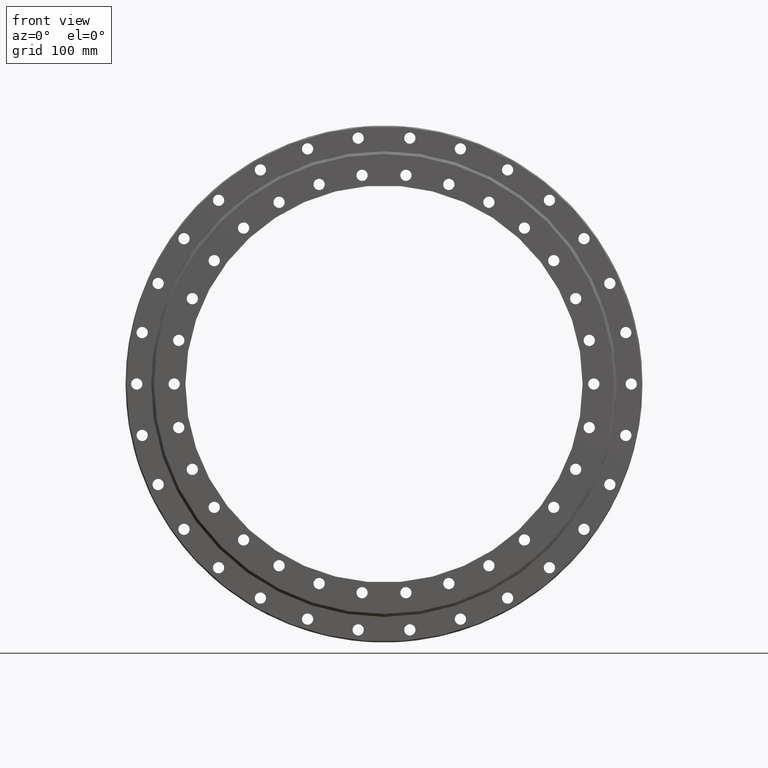
[diagram: clean part render]
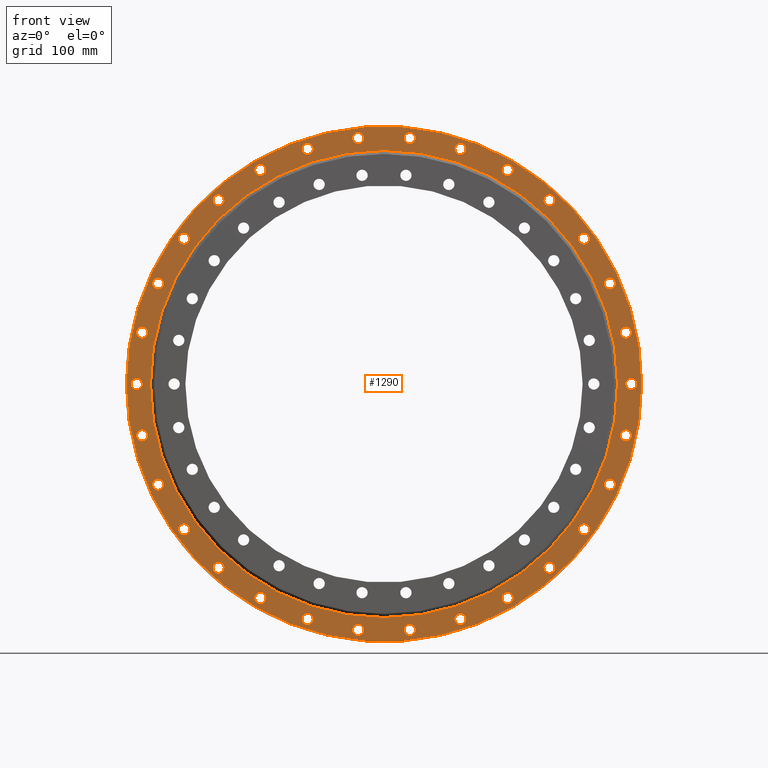
[diagram: same view with one face highlighted and labeled with its STEP entity id]
A machine part, front view. The second image highlights one B-rep face of the part: STEP entity #1290.
In plain terms, the highlighted planar face has unit normal (0, 1, 0).
Its self-contained STEP definition (entity closure, byte-faithful):
#64 = VERTEX_POINT ( 'NONE', #5556 ) ;
#129 = ORIENTED_EDGE ( 'NONE', *, *, #3015, .T. ) ;
#132 = CARTESIAN_POINT ( 'NONE',  ( 91.93255582654391800, -20.00000000000000400, -282.9393135978091300 ) ) ;
#134 = CARTESIAN_POINT ( 'NONE',  ( 37.84721782212366700, -20.00000000000000400, -295.8702638720616300 ) ) ;
#152 = CARTESIAN_POINT ( 'NONE',  ( -85.18255582655025600, -20.00000000000000400, -282.9393135978070900 ) ) ;
#163 = CARTESIAN_POINT ( 'NONE',  ( -290.7500000000000000, -20.00000000000000400, 4.330696432627534300E-012 ) ) ;
#186 = DIRECTION ( 'NONE',  ( 0.8090169943749500000, 0.0000000000000000000, -0.5877852522924695800 ) ) ;
#187 = VERTEX_POINT ( 'NONE', #7224 ) ;
#194 = DIRECTION ( 'NONE',  ( -0.3090169943749435100, 0.0000000000000000000, -0.9510565162951548600 ) ) ;
#222 = CARTESIAN_POINT ( 'NONE',  ( 233.9325558265479700, -20.00000000000000400, 174.8661125570092500 ) ) ;
#240 = CARTESIAN_POINT ( 'NONE',  ( -310.0000000000000000, -20.00000000000000400, 0.0000000000000000000 ) ) ;
#252 = DIRECTION ( 'NONE',  ( 0.0000000000000000000, 1.000000000000000000, 0.0000000000000000000 ) ) ;
#254 = EDGE_LOOP ( 'NONE', ( #6042, #4956 ) ) ;
#279 = CARTESIAN_POINT ( 'NONE',  ( 284.2489112183076300, -20.00000000000000400, 61.85372801828128100 ) ) ;
#286 = CARTESIAN_POINT ( 'NONE',  ( -91.93255582655024200, -20.00000000000000400, -282.9393135978070900 ) ) ;
#287 = CARTESIAN_POINT ( 'NONE',  ( 240.6825558265479700, -20.00000000000000400, 174.8661125570092500 ) ) ;
#298 = CIRCLE ( 'NONE', #1175, 6.749999999999978700 ) ;
#303 = VERTEX_POINT ( 'NONE', #8207 ) ;
#312 = DIRECTION ( 'NONE',  ( 0.0000000000000000000, 1.000000000000000000, 0.0000000000000000000 ) ) ;
#322 = VERTEX_POINT ( 'NONE', #8430 ) ;
#331 = VERTEX_POINT ( 'NONE', #8242 ) ;
#334 = CIRCLE ( 'NONE', #1951, 6.749999999999998200 ) ;
#367 = VERTEX_POINT ( 'NONE', #5077 ) ;
#388 = EDGE_LOOP ( 'NONE', ( #4906, #8275 ) ) ;
#447 = ORIENTED_EDGE ( 'NONE', *, *, #2322, .T. ) ;
#461 = EDGE_CURVE ( 'NONE', #1344, #7977, #5768, .T. ) ;
#483 = CIRCLE ( 'NONE', #6910, 6.750000000000011500 ) ;
#492 = FACE_BOUND ( 'NONE', #2041, .T. ) ;
#503 = DIRECTION ( 'NONE',  ( 0.0000000000000000000, 1.000000000000000000, 0.0000000000000000000 ) ) ;
#508 = CARTESIAN_POINT ( 'NONE',  ( -240.6825558265491900, -20.00000000000000400, -174.8661125570075400 ) ) ;
#517 = CARTESIAN_POINT ( 'NONE',  ( 240.6825558265451800, -20.00000000000000400, -174.8661125570129700 ) ) ;
#519 = CIRCLE ( 'NONE', #5577, 6.750000000000009800 ) ;
#522 = ORIENTED_EDGE ( 'NONE', *, *, #7590, .T. ) ;
#533 = ORIENTED_EDGE ( 'NONE', *, *, #922, .T. ) ;
#547 = DIRECTION ( 'NONE',  ( -0.6691306063588566800, 0.0000000000000000000, -0.7431448254773955800 ) ) ;
#556 = EDGE_CURVE ( 'NONE', #64, #8353, #3014, .T. ) ;
#565 = DIRECTION ( 'NONE',  ( 0.0000000000000000000, 1.000000000000000000, 0.0000000000000000000 ) ) ;
#576 = CARTESIAN_POINT ( 'NONE',  ( -199.0663553917631500, -20.00000000000000400, -221.0855855795222700 ) ) ;
#578 = AXIS2_PLACEMENT_3D ( 'NONE', #6097, #1904, #6811 ) ;
#612 = EDGE_CURVE ( 'NONE', #4110, #818, #519, .T. ) ;
#628 = VERTEX_POINT ( 'NONE', #3680 ) ;
#647 = VERTEX_POINT ( 'NONE', #2472 ) ;
#670 = DIRECTION ( 'NONE',  ( 0.0000000000000000000, 1.000000000000000000, 0.0000000000000000000 ) ) ;
#686 = EDGE_CURVE ( 'NONE', #2606, #4019, #7336, .T. ) ;
#691 = DIRECTION ( 'NONE',  ( -0.6691306063588566800, 0.0000000000000000000, -0.7431448254773955800 ) ) ;
#697 = EDGE_LOOP ( 'NONE', ( #3915, #5127 ) ) ;
#705 = FACE_BOUND ( 'NONE', #3337, .T. ) ;
#713 = AXIS2_PLACEMENT_3D ( 'NONE', #286, #252, #194 ) ;
#728 = AXIS2_PLACEMENT_3D ( 'NONE', #2167, #2157, #2139 ) ;
#742 = EDGE_CURVE ( 'NONE', #3666, #1163, #298, .T. ) ;
#754 = CARTESIAN_POINT ( 'NONE',  ( -199.0663553917631500, -20.00000000000000400, -221.0855855795222700 ) ) ;
#788 = DIRECTION ( 'NONE',  ( 0.0000000000000000000, 1.000000000000000000, 0.0000000000000000000 ) ) ;
#814 = CIRCLE ( 'NONE', #2957, 6.749999999999978700 ) ;
#818 = VERTEX_POINT ( 'NONE', #279 ) ;
#841 = VERTEX_POINT ( 'NONE', #3990 ) ;
#850 = AXIS2_PLACEMENT_3D ( 'NONE', #2844, #2835, #2800 ) ;
#851 = DIRECTION ( 'NONE',  ( 0.9135454576425983100, 0.0000000000000000000, 0.4067366430758060900 ) ) ;
#859 = VERTEX_POINT ( 'NONE', #2978 ) ;
#874 = AXIS2_PLACEMENT_3D ( 'NONE', #2483, #7428, #3171 ) ;
#880 = CARTESIAN_POINT ( 'NONE',  ( -155.4999999999992600, -20.00000000000000400, 257.6425576258708900 ) ) ;
#884 = DIRECTION ( 'NONE',  ( 0.0000000000000000000, 1.000000000000000000, 0.0000000000000000000 ) ) ;
#906 = CIRCLE ( 'NONE', #7696, 6.749999999999996400 ) ;
#919 = CARTESIAN_POINT ( 'NONE',  ( 271.7797736486746200, -20.00000000000000400, 121.0041513150486500 ) ) ;
#922 = EDGE_CURVE ( 'NONE', #5788, #4016, #2568, .T. ) ;
#923 = DIRECTION ( 'NONE',  ( 0.0000000000000000000, 1.000000000000000000, 0.0000000000000000000 ) ) ;
#928 = FACE_BOUND ( 'NONE', #5675, .T. ) ;
#967 = CARTESIAN_POINT ( 'NONE',  ( 91.93255582654391800, -20.00000000000000400, -282.9393135978091300 ) ) ;
#968 = EDGE_LOOP ( 'NONE', ( #1836, #6768 ) ) ;
#975 = DIRECTION ( 'NONE',  ( 0.0000000000000000000, 1.000000000000000000, 0.0000000000000000000 ) ) ;
#985 = EDGE_CURVE ( 'NONE', #7448, #6215, #7791, .T. ) ;
#987 = DIRECTION ( 'NONE',  ( 0.8090169943749432300, 0.0000000000000000000, 0.5877852522924788000 ) ) ;
#1006 = DIRECTION ( 'NONE',  ( 0.1045284632676434600, 0.0000000000000000000, 0.9945218953682744000 ) ) ;
#1076 = ORIENTED_EDGE ( 'NONE', *, *, #7416, .T. ) ;
#1089 = ORIENTED_EDGE ( 'NONE', *, *, #1482, .T. ) ;
#1119 = CIRCLE ( 'NONE', #6989, 6.749999999999974200 ) ;
#1124 = EDGE_LOOP ( 'NONE', ( #2246, #8164 ) ) ;
#1138 = FACE_BOUND ( 'NONE', #3209, .T. ) ;
#1163 = VERTEX_POINT ( 'NONE', #1238 ) ;
#1175 = AXIS2_PLACEMENT_3D ( 'NONE', #7158, #7202, #7221 ) ;
#1185 = ORIENTED_EDGE ( 'NONE', *, *, #985, .T. ) ;
#1214 = DIRECTION ( 'NONE',  ( 0.8090169943749500000, 0.0000000000000000000, -0.5877852522924695800 ) ) ;
#1224 = EDGE_CURVE ( 'NONE', #7867, #8864, #2237, .T. ) ;
#1238 = CARTESIAN_POINT ( 'NONE',  ( 290.7500000000000000, -20.00000000000000400, -2.252438399426445500E-012 ) ) ;
#1242 = AXIS2_PLACEMENT_3D ( 'NONE', #2691, #2661, #2634 ) ;
#1257 = DIRECTION ( 'NONE',  ( 0.0000000000000000000, 1.000000000000000000, 0.0000000000000000000 ) ) ;
#1261 = AXIS2_PLACEMENT_3D ( 'NONE', #4673, #4642, #4603 ) ;
#1274 = AXIS2_PLACEMENT_3D ( 'NONE', #5103, #923, #5818 ) ;
#1276 = VERTEX_POINT ( 'NONE', #3395 ) ;
#1290 = ADVANCED_FACE ( 'NONE', ( #9109, #1800, #7429, #7201, #5298, #3426, #1584, #8889, #6961, #5080, #3200, #1359, #8669, #6731, #4862, #2985, #1138, #8456, #6515, #4633, #2769, #928, #8226, #6301, #4416, #2563, #705, #7998, #6067, #4206, #2343, #492 ), #3852, .F. ) ;
#1297 = CIRCLE ( 'NONE', #7478, 6.749999999999992900 ) ;
#1344 = VERTEX_POINT ( 'NONE', #4786 ) ;
#1353 = CIRCLE ( 'NONE', #5164, 6.750000000000019500 ) ;
#1359 = FACE_BOUND ( 'NONE', #2751, .T. ) ;
#1366 = CARTESIAN_POINT ( 'NONE',  ( -24.34721782213030000, -20.00000000000000400, -295.8702638720610000 ) ) ;
#1385 = DIRECTION ( 'NONE',  ( 0.0000000000000000000, 1.000000000000000000, 0.0000000000000000000 ) ) ;
#1472 = CIRCLE ( 'NONE', #3292, 6.750000000000011500 ) ;
#1482 = EDGE_CURVE ( 'NONE', #7472, #7752, #4751, .T. ) ;
#1489 = CARTESIAN_POINT ( 'NONE',  ( -205.8163553917631500, -20.00000000000000400, -221.0855855795222700 ) ) ;
#1520 = CARTESIAN_POINT ( 'NONE',  ( -155.5000000000031500, -20.00000000000000400, -257.6425576258686800 ) ) ;
#1531 = CARTESIAN_POINT ( 'NONE',  ( -304.2499999999999400, -20.00000000000000400, 4.329869796038109700E-012 ) ) ;
#1532 = EDGE_CURVE ( 'NONE', #8201, #647, #6405, .T. ) ;
#1581 = EDGE_CURVE ( 'NONE', #3575, #7122, #7421, .T. ) ;
#1584 = FACE_BOUND ( 'NONE', #3153, .T. ) ;
#1656 = DIRECTION ( 'NONE',  ( -0.8090169943749553300, 0.0000000000000000000, 0.5877852522924623700 ) ) ;
#1660 = ORIENTED_EDGE ( 'NONE', *, *, #742, .T. ) ;
#1661 = EDGE_CURVE ( 'NONE', #4016, #5788, #1353, .T. ) ;
#1666 = VERTEX_POINT ( 'NONE', #7584 ) ;
#1680 = CARTESIAN_POINT ( 'NONE',  ( -247.4325558265464100, -20.00000000000000400, 174.8661125570113200 ) ) ;
#1688 = EDGE_CURVE ( 'NONE', #8354, #367, #1792, .T. ) ;
#1695 = DIRECTION ( 'NONE',  ( 0.0000000000000000000, 1.000000000000000000, 0.0000000000000000000 ) ) ;
#1721 = ORIENTED_EDGE ( 'NONE', *, *, #3767, .T. ) ;
#1724 = VERTEX_POINT ( 'NONE', #3001 ) ;
#1733 = ORIENTED_EDGE ( 'NONE', *, *, #6498, .T. ) ;
#1755 = CARTESIAN_POINT ( 'NONE',  ( -240.6825558265464100, -20.00000000000000400, 174.8661125570113200 ) ) ;
#1760 = EDGE_LOOP ( 'NONE', ( #6556, #8123 ) ) ;
#1779 = CIRCLE ( 'NONE', #6725, 6.750000000000004400 ) ;
#1781 = CARTESIAN_POINT ( 'NONE',  ( -37.84721782212560700, -20.00000000000000400, 295.8702638720614600 ) ) ;
#1782 = EDGE_LOOP ( 'NONE', ( #6962, #2569 ) ) ;
#1792 = CIRCLE ( 'NONE', #2810, 6.750000000000016000 ) ;
#1798 = EDGE_CURVE ( 'NONE', #1163, #3666, #6294, .T. ) ;
#1800 = FACE_BOUND ( 'NONE', #4921, .T. ) ;
#1806 = ORIENTED_EDGE ( 'NONE', *, *, #1532, .T. ) ;
#1809 = AXIS2_PLACEMENT_3D ( 'NONE', #6003, #1813, #6710 ) ;
#1813 = DIRECTION ( 'NONE',  ( 0.0000000000000000000, 1.000000000000000000, 0.0000000000000000000 ) ) ;
#1820 = DIRECTION ( 'NONE',  ( 0.0000000000000000000, 1.000000000000000000, 0.0000000000000000000 ) ) ;
#1826 = CARTESIAN_POINT ( 'NONE',  ( -271.7797736486754700, -20.00000000000000400, -121.0041513150468500 ) ) ;
#1836 = ORIENTED_EDGE ( 'NONE', *, *, #1863, .T. ) ;
#1849 = CARTESIAN_POINT ( 'NONE',  ( 290.9989112183066600, -20.00000000000000400, -61.85372801828582100 ) ) ;
#1855 = DIRECTION ( 'NONE',  ( 0.3090169943749532800, 0.0000000000000000000, -0.9510565162951516400 ) ) ;
#1863 = EDGE_CURVE ( 'NONE', #322, #303, #2119, .T. ) ;
#1878 = ORIENTED_EDGE ( 'NONE', *, *, #8980, .T. ) ;
#1883 = AXIS2_PLACEMENT_3D ( 'NONE', #4104, #4411, #4437 ) ;
#1890 = EDGE_LOOP ( 'NONE', ( #3685, #5120 ) ) ;
#1892 = AXIS2_PLACEMENT_3D ( 'NONE', #5177, #5491, #5273 ) ;
#1904 = DIRECTION ( 'NONE',  ( 0.0000000000000000000, 1.000000000000000000, 0.0000000000000000000 ) ) ;
#1909 = EDGE_CURVE ( 'NONE', #8565, #6845, #7524, .T. ) ;
#1910 = CIRCLE ( 'NONE', #5143, 6.749999999999982200 ) ;
#1932 = ORIENTED_EDGE ( 'NONE', *, *, #3774, .T. ) ;
#1948 = EDGE_CURVE ( 'NONE', #5622, #6172, #7065, .T. ) ;
#1951 = AXIS2_PLACEMENT_3D ( 'NONE', #508, #670, #6787 ) ;
#1958 = ORIENTED_EDGE ( 'NONE', *, *, #8855, .T. ) ;
#1961 = DIRECTION ( 'NONE',  ( 0.0000000000000000000, 1.000000000000000000, 0.0000000000000000000 ) ) ;
#1976 = CARTESIAN_POINT ( 'NONE',  ( -91.93255582654569500, -20.00000000000000400, 282.9393135978085600 ) ) ;
#1993 = VERTEX_POINT ( 'NONE', #6013 ) ;
#2009 = CIRCLE ( 'NONE', #1261, 6.749999999999969800 ) ;
#2023 = DIRECTION ( 'NONE',  ( 0.0000000000000000000, 1.000000000000000000, 0.0000000000000000000 ) ) ;
#2041 = EDGE_LOOP ( 'NONE', ( #7593, #5463 ) ) ;
#2119 = CIRCLE ( 'NONE', #7563, 6.749999999999992000 ) ;
#2121 = VERTEX_POINT ( 'NONE', #5216 ) ;
#2139 = DIRECTION ( 'NONE',  ( -1.000000000000000000, 0.0000000000000000000, 0.0000000000000000000 ) ) ;
#2149 = CARTESIAN_POINT ( 'NONE',  ( 199.0663553917581800, -20.00000000000000400, -221.0855855795266800 ) ) ;
#2150 = ORIENTED_EDGE ( 'NONE', *, *, #8841, .T. ) ;
#2157 = DIRECTION ( 'NONE',  ( 0.0000000000000000000, 1.000000000000000000, 0.0000000000000000000 ) ) ;
#2167 = CARTESIAN_POINT ( 'NONE',  ( 1.753618503876595600E-015, -20.00000000000000400, 0.0000000000000000000 ) ) ;
#2176 = DIRECTION ( 'NONE',  ( 0.0000000000000000000, 1.000000000000000000, 0.0000000000000000000 ) ) ;
#2205 = EDGE_CURVE ( 'NONE', #5778, #5111, #7178, .T. ) ;
#2237 = CIRCLE ( 'NONE', #3158, 6.749999999999974200 ) ;
#2246 = ORIENTED_EDGE ( 'NONE', *, *, #6311, .T. ) ;
#2252 = EDGE_LOOP ( 'NONE', ( #4327, #5759 ) ) ;
#2276 = DIRECTION ( 'NONE',  ( 0.0000000000000000000, 1.000000000000000000, 0.0000000000000000000 ) ) ;
#2286 = EDGE_CURVE ( 'NONE', #4466, #3795, #906, .T. ) ;
#2289 = CIRCLE ( 'NONE', #2706, 6.750000000000009800 ) ;
#2318 = EDGE_LOOP ( 'NONE', ( #1806, #6523 ) ) ;
#2322 = EDGE_CURVE ( 'NONE', #2577, #6747, #2324, .T. ) ;
#2324 = CIRCLE ( 'NONE', #9130, 6.750000000000012400 ) ;
#2328 = CIRCLE ( 'NONE', #5540, 6.749999999999993800 ) ;
#2343 = FACE_BOUND ( 'NONE', #2252, .T. ) ;
#2371 = CARTESIAN_POINT ( 'NONE',  ( 31.09721782212829000, -20.00000000000000400, 295.8702638720611700 ) ) ;
#2379 = VERTEX_POINT ( 'NONE', #5154 ) ;
#2385 = CIRCLE ( 'NONE', #6584, 6.749999999999998200 ) ;
#2399 = ORIENTED_EDGE ( 'NONE', *, *, #556, .T. ) ;
#2413 = AXIS2_PLACEMENT_3D ( 'NONE', #3277, #5416, #5596 ) ;
#2472 = CARTESIAN_POINT ( 'NONE',  ( 310.0000000000000000, -20.00000000000000400, 3.802528311352532000E-014 ) ) ;
#2483 = CARTESIAN_POINT ( 'NONE',  ( -31.09721782213029300, -20.00000000000000400, -295.8702638720610000 ) ) ;
#2488 = CARTESIAN_POINT ( 'NONE',  ( -37.84721782213029000, -20.00000000000000400, -295.8702638720610000 ) ) ;
#2494 = AXIS2_PLACEMENT_3D ( 'NONE', #3214, #8200, #3924 ) ;
#2508 = EDGE_CURVE ( 'NONE', #7026, #2675, #7193, .T. ) ;
#2510 = CIRCLE ( 'NONE', #8801, 6.749999999999984000 ) ;
#2514 = ORIENTED_EDGE ( 'NONE', *, *, #5528, .T. ) ;
#2528 = DIRECTION ( 'NONE',  ( -0.9135454576426005300, 0.0000000000000000000, -0.4067366430758008700 ) ) ;
#2533 = AXIS2_PLACEMENT_3D ( 'NONE', #6931, #6967, #6999 ) ;
#2543 = DIRECTION ( 'NONE',  ( 0.9781476007338070200, 0.0000000000000000000, -0.2079116908177530400 ) ) ;
#2545 = VERTEX_POINT ( 'NONE', #1531 ) ;
#2563 = FACE_BOUND ( 'NONE', #4119, .T. ) ;
#2568 = CIRCLE ( 'NONE', #7819, 6.750000000000019500 ) ;
#2569 = ORIENTED_EDGE ( 'NONE', *, *, #4399, .T. ) ;
#2576 = CARTESIAN_POINT ( 'NONE',  ( -91.93255582654569500, -20.00000000000000400, 282.9393135978085600 ) ) ;
#2577 = VERTEX_POINT ( 'NONE', #880 ) ;
#2582 = ORIENTED_EDGE ( 'NONE', *, *, #6244, .T. ) ;
#2597 = CARTESIAN_POINT ( 'NONE',  ( -141.9999999999992300, -20.00000000000000400, 257.6425576258708900 ) ) ;
#2599 = CARTESIAN_POINT ( 'NONE',  ( -85.18255582654569500, -20.00000000000000400, 282.9393135978085600 ) ) ;
#2602 = VERTEX_POINT ( 'NONE', #222 ) ;
#2604 = CARTESIAN_POINT ( 'NONE',  ( -31.09721782212561100, -20.00000000000000400, 295.8702638720614600 ) ) ;
#2606 = VERTEX_POINT ( 'NONE', #152 ) ;
#2612 = DIRECTION ( 'NONE',  ( 0.0000000000000000000, 1.000000000000000000, 0.0000000000000000000 ) ) ;
#2633 = DIRECTION ( 'NONE',  ( -0.1045284632676636600, 0.0000000000000000000, 0.9945218953682721800 ) ) ;
#2634 = DIRECTION ( 'NONE',  ( -0.9135454576426065300, 0.0000000000000000000, 0.4067366430757875000 ) ) ;
#2642 = AXIS2_PLACEMENT_3D ( 'NONE', #967, #1820, #1855 ) ;
#2661 = DIRECTION ( 'NONE',  ( 0.0000000000000000000, 1.000000000000000000, 0.0000000000000000000 ) ) ;
#2671 = DIRECTION ( 'NONE',  ( -0.3090169943749570500, 0.0000000000000000000, 0.9510565162951504200 ) ) ;
#2675 = VERTEX_POINT ( 'NONE', #4152 ) ;
#2691 = CARTESIAN_POINT ( 'NONE',  ( -271.7797736486735400, -20.00000000000000400, 121.0041513150511500 ) ) ;
#2706 = AXIS2_PLACEMENT_3D ( 'NONE', #4494, #4470, #4440 ) ;
#2720 = CIRCLE ( 'NONE', #7350, 6.749999999999989300 ) ;
#2751 = EDGE_LOOP ( 'NONE', ( #2514, #3155 ) ) ;
#2769 = FACE_BOUND ( 'NONE', #8820, .T. ) ;
#2785 = CARTESIAN_POINT ( 'NONE',  ( -24.34721782212561400, -20.00000000000000400, 295.8702638720614600 ) ) ;
#2797 = EDGE_CURVE ( 'NONE', #187, #859, #334, .T. ) ;
#2800 = DIRECTION ( 'NONE',  ( 0.8090169943749432300, 0.0000000000000000000, 0.5877852522924788000 ) ) ;
#2809 = CIRCLE ( 'NONE', #1892, 6.749999999999977800 ) ;
#2810 = AXIS2_PLACEMENT_3D ( 'NONE', #8912, #312, #1006 ) ;
#2821 = CIRCLE ( 'NONE', #9096, 6.750000000000006200 ) ;
#2835 = DIRECTION ( 'NONE',  ( 0.0000000000000000000, 1.000000000000000000, 0.0000000000000000000 ) ) ;
#2839 = DIRECTION ( 'NONE',  ( 0.6691306063588610100, 0.0000000000000000000, -0.7431448254773915800 ) ) ;
#2844 = CARTESIAN_POINT ( 'NONE',  ( 240.6825558265479700, -20.00000000000000400, 174.8661125570092500 ) ) ;
#2856 = EDGE_LOOP ( 'NONE', ( #4181, #2964 ) ) ;
#2878 = CIRCLE ( 'NONE', #8861, 6.749999999999984000 ) ;
#2914 = ORIENTED_EDGE ( 'NONE', *, *, #7876, .T. ) ;
#2927 = ORIENTED_EDGE ( 'NONE', *, *, #5015, .T. ) ;
#2932 = AXIS2_PLACEMENT_3D ( 'NONE', #754, #788, #691 ) ;
#2957 = AXIS2_PLACEMENT_3D ( 'NONE', #4172, #9156, #4879 ) ;
#2964 = ORIENTED_EDGE ( 'NONE', *, *, #6048, .T. ) ;
#2978 = CARTESIAN_POINT ( 'NONE',  ( -233.9325558265491900, -20.00000000000000400, -174.8661125570075400 ) ) ;
#2985 = FACE_BOUND ( 'NONE', #8895, .T. ) ;
#3001 = CARTESIAN_POINT ( 'NONE',  ( 24.34721782212368500, -20.00000000000000400, -295.8702638720616300 ) ) ;
#3014 = CIRCLE ( 'NONE', #3208, 6.749999999999982200 ) ;
#3015 = EDGE_CURVE ( 'NONE', #818, #4110, #2289, .T. ) ;
#3034 = VERTEX_POINT ( 'NONE', #4553 ) ;
#3060 = DIRECTION ( 'NONE',  ( 0.1045284632676434600, 0.0000000000000000000, 0.9945218953682744000 ) ) ;
#3073 = ORIENTED_EDGE ( 'NONE', *, *, #1688, .T. ) ;
#3134 = EDGE_LOOP ( 'NONE', ( #1878, #8754 ) ) ;
#3153 = EDGE_LOOP ( 'NONE', ( #2582, #2150 ) ) ;
#3155 = ORIENTED_EDGE ( 'NONE', *, *, #7408, .T. ) ;
#3158 = AXIS2_PLACEMENT_3D ( 'NONE', #2604, #2612, #2633 ) ;
#3159 = VERTEX_POINT ( 'NONE', #2488 ) ;
#3171 = DIRECTION ( 'NONE',  ( -0.1045284632676495700, 0.0000000000000000000, -0.9945218953682737300 ) ) ;
#3179 = DIRECTION ( 'NONE',  ( 0.0000000000000000000, 1.000000000000000000, 0.0000000000000000000 ) ) ;
#3200 = FACE_BOUND ( 'NONE', #1124, .T. ) ;
#3208 = AXIS2_PLACEMENT_3D ( 'NONE', #6527, #6764, #5313 ) ;
#3209 = EDGE_LOOP ( 'NONE', ( #1185, #7443 ) ) ;
#3214 = CARTESIAN_POINT ( 'NONE',  ( 0.0000000000000000000, -20.00000000000000400, 0.0000000000000000000 ) ) ;
#3218 = EDGE_LOOP ( 'NONE', ( #2927, #4443 ) ) ;
#3225 = ORIENTED_EDGE ( 'NONE', *, *, #686, .T. ) ;
#3246 = ORIENTED_EDGE ( 'NONE', *, *, #612, .T. ) ;
#3254 = ORIENTED_EDGE ( 'NONE', *, *, #5844, .T. ) ;
#3260 = DIRECTION ( 'NONE',  ( -0.3090169943749570500, 0.0000000000000000000, 0.9510565162951504200 ) ) ;
#3265 = CARTESIAN_POINT ( 'NONE',  ( 247.4325558265451800, -20.00000000000000400, -174.8661125570129700 ) ) ;
#3271 = ORIENTED_EDGE ( 'NONE', *, *, #1798, .T. ) ;
#3277 = CARTESIAN_POINT ( 'NONE',  ( 271.7797736486746200, -20.00000000000000400, 121.0041513150486500 ) ) ;
#3292 = AXIS2_PLACEMENT_3D ( 'NONE', #8081, #8026, #8016 ) ;
#3337 = EDGE_LOOP ( 'NONE', ( #1958, #3366 ) ) ;
#3358 = AXIS2_PLACEMENT_3D ( 'NONE', #4162, #4125, #4103 ) ;
#3366 = ORIENTED_EDGE ( 'NONE', *, *, #4665, .T. ) ;
#3387 = EDGE_CURVE ( 'NONE', #859, #187, #9054, .T. ) ;
#3394 = CARTESIAN_POINT ( 'NONE',  ( 98.68255582654825300, -20.00000000000000400, 282.9393135978077100 ) ) ;
#3395 = CARTESIAN_POINT ( 'NONE',  ( 247.4325558265479700, -20.00000000000000400, 174.8661125570092500 ) ) ;
#3414 = DIRECTION ( 'NONE',  ( 0.0000000000000000000, 1.000000000000000000, 0.0000000000000000000 ) ) ;
#3426 = FACE_BOUND ( 'NONE', #5024, .T. ) ;
#3505 = DIRECTION ( 'NONE',  ( 0.0000000000000000000, 1.000000000000000000, 0.0000000000000000000 ) ) ;
#3508 = VERTEX_POINT ( 'NONE', #2599 ) ;
#3515 = CARTESIAN_POINT ( 'NONE',  ( 85.18255582654826700, -20.00000000000000400, 282.9393135978077100 ) ) ;
#3563 = CARTESIAN_POINT ( 'NONE',  ( -290.9989112183070600, -20.00000000000000400, 61.85372801828391000 ) ) ;
#3575 = VERTEX_POINT ( 'NONE', #4891 ) ;
#3666 = VERTEX_POINT ( 'NONE', #6193 ) ;
#3672 = DIRECTION ( 'NONE',  ( 0.0000000000000000000, 1.000000000000000000, 0.0000000000000000000 ) ) ;
#3678 = DIRECTION ( 'NONE',  ( -0.9781476007338056900, 0.0000000000000000000, -0.2079116908177589500 ) ) ;
#3680 = CARTESIAN_POINT ( 'NONE',  ( 141.9999999999974700, -20.00000000000000400, -257.6425576258720300 ) ) ;
#3685 = ORIENTED_EDGE ( 'NONE', *, *, #7014, .T. ) ;
#3692 = CARTESIAN_POINT ( 'NONE',  ( -290.9989112183080200, -20.00000000000000400, -61.85372801827929800 ) ) ;
#3695 = EDGE_CURVE ( 'NONE', #2121, #2379, #2809, .T. ) ;
#3733 = CIRCLE ( 'NONE', #8385, 6.749999999999975100 ) ;
#3767 = EDGE_CURVE ( 'NONE', #3034, #4029, #2385, .T. ) ;
#3774 = EDGE_CURVE ( 'NONE', #7714, #331, #4453, .T. ) ;
#3776 = AXIS2_PLACEMENT_3D ( 'NONE', #7787, #3505, #8507 ) ;
#3782 = CARTESIAN_POINT ( 'NONE',  ( -297.5000000000000000, -20.00000000000000400, 4.329869796038109700E-012 ) ) ;
#3788 = CIRCLE ( 'NONE', #6740, 6.750000000000009800 ) ;
#3795 = VERTEX_POINT ( 'NONE', #3394 ) ;
#3809 = DIRECTION ( 'NONE',  ( 0.9781476007338040200, 0.0000000000000000000, 0.2079116908177668100 ) ) ;
#3821 = CARTESIAN_POINT ( 'NONE',  ( -275.7499999999999400, -20.00000000000000400, 0.0000000000000000000 ) ) ;
#3840 = CARTESIAN_POINT ( 'NONE',  ( 290.9989112183076300, -20.00000000000000400, 61.85372801828128100 ) ) ;
#3847 = CIRCLE ( 'NONE', #2494, 310.0000000000000000 ) ;
#3852 = PLANE ( 'NONE',  #7932 ) ;
#3880 = EDGE_LOOP ( 'NONE', ( #522, #1932 ) ) ;
#3881 = ORIENTED_EDGE ( 'NONE', *, *, #4533, .T. ) ;
#3896 = DIRECTION ( 'NONE',  ( 0.0000000000000000000, 1.000000000000000000, 0.0000000000000000000 ) ) ;
#3915 = ORIENTED_EDGE ( 'NONE', *, *, #2797, .T. ) ;
#3921 = DIRECTION ( 'NONE',  ( 0.0000000000000000000, 1.000000000000000000, 0.0000000000000000000 ) ) ;
#3924 = DIRECTION ( 'NONE',  ( -1.000000000000000000, 0.0000000000000000000, 0.0000000000000000000 ) ) ;
#3943 = DIRECTION ( 'NONE',  ( -1.000000000000000000, 0.0000000000000000000, 0.0000000000000000000 ) ) ;
#3974 = VERTEX_POINT ( 'NONE', #8959 ) ;
#3990 = CARTESIAN_POINT ( 'NONE',  ( 155.4999999999974700, -20.00000000000000400, -257.6425576258720300 ) ) ;
#4001 = EDGE_CURVE ( 'NONE', #7055, #7300, #4790, .T. ) ;
#4016 = VERTEX_POINT ( 'NONE', #8971 ) ;
#4019 = VERTEX_POINT ( 'NONE', #8516 ) ;
#4029 = VERTEX_POINT ( 'NONE', #8345 ) ;
#4052 = CARTESIAN_POINT ( 'NONE',  ( -91.93255582655024200, -20.00000000000000400, -282.9393135978070900 ) ) ;
#4055 = CARTESIAN_POINT ( 'NONE',  ( 192.3163553917616500, -20.00000000000000400, 221.0855855795236100 ) ) ;
#4078 = CARTESIAN_POINT ( 'NONE',  ( 98.68255582654390400, -20.00000000000000400, -282.9393135978091300 ) ) ;
#4089 = CARTESIAN_POINT ( 'NONE',  ( 148.7499999999974700, -20.00000000000000400, -257.6425576258720300 ) ) ;
#4103 = DIRECTION ( 'NONE',  ( 0.5000000000000036600, 0.0000000000000000000, -0.8660254037844364900 ) ) ;
#4104 = CARTESIAN_POINT ( 'NONE',  ( 199.0663553917616500, -20.00000000000000400, 221.0855855795236100 ) ) ;
#4110 = VERTEX_POINT ( 'NONE', #7196 ) ;
#4119 = EDGE_LOOP ( 'NONE', ( #5234, #2399 ) ) ;
#4125 = DIRECTION ( 'NONE',  ( 0.0000000000000000000, 1.000000000000000000, 0.0000000000000000000 ) ) ;
#4152 = CARTESIAN_POINT ( 'NONE',  ( 281.0000000000000000, -20.00000000000000400, 3.441257505604062700E-014 ) ) ;
#4162 = CARTESIAN_POINT ( 'NONE',  ( 148.7499999999974700, -20.00000000000000400, -257.6425576258720300 ) ) ;
#4172 = CARTESIAN_POINT ( 'NONE',  ( -297.5000000000000000, -20.00000000000000400, 4.329869796038109700E-012 ) ) ;
#4179 = ORIENTED_EDGE ( 'NONE', *, *, #8243, .T. ) ;
#4181 = ORIENTED_EDGE ( 'NONE', *, *, #4001, .T. ) ;
#4187 = AXIS2_PLACEMENT_3D ( 'NONE', #8663, #8645, #8623 ) ;
#4206 = FACE_BOUND ( 'NONE', #7906, .T. ) ;
#4312 = EDGE_CURVE ( 'NONE', #2379, #2121, #6099, .T. ) ;
#4318 = AXIS2_PLACEMENT_3D ( 'NONE', #6232, #2023, #6933 ) ;
#4327 = ORIENTED_EDGE ( 'NONE', *, *, #8739, .T. ) ;
#4362 = ORIENTED_EDGE ( 'NONE', *, *, #7608, .T. ) ;
#4364 = DIRECTION ( 'NONE',  ( 0.0000000000000000000, 1.000000000000000000, 0.0000000000000000000 ) ) ;
#4393 = CARTESIAN_POINT ( 'NONE',  ( -281.0000000000000000, -20.00000000000000400, 0.0000000000000000000 ) ) ;
#4399 = EDGE_CURVE ( 'NONE', #841, #628, #9099, .T. ) ;
#4411 = DIRECTION ( 'NONE',  ( 0.0000000000000000000, 1.000000000000000000, 0.0000000000000000000 ) ) ;
#4416 = FACE_BOUND ( 'NONE', #5319, .T. ) ;
#4419 = AXIS2_PLACEMENT_3D ( 'NONE', #576, #565, #547 ) ;
#4437 = DIRECTION ( 'NONE',  ( 0.6691306063588523500, 0.0000000000000000000, 0.7431448254773995700 ) ) ;
#4440 = DIRECTION ( 'NONE',  ( 0.9781476007338040200, 0.0000000000000000000, 0.2079116908177668100 ) ) ;
#4443 = ORIENTED_EDGE ( 'NONE', *, *, #1909, .T. ) ;
#4453 = CIRCLE ( 'NONE', #6122, 6.749999999999982200 ) ;
#4466 = VERTEX_POINT ( 'NONE', #3515 ) ;
#4470 = DIRECTION ( 'NONE',  ( 0.0000000000000000000, 1.000000000000000000, 0.0000000000000000000 ) ) ;
#4490 = DIRECTION ( 'NONE',  ( -1.000000000000000000, 0.0000000000000000000, 0.0000000000000000000 ) ) ;
#4494 = CARTESIAN_POINT ( 'NONE',  ( 290.9989112183076300, -20.00000000000000400, 61.85372801828128100 ) ) ;
#4496 = VERTEX_POINT ( 'NONE', #3265 ) ;
#4501 = CIRCLE ( 'NONE', #8154, 6.749999999999978700 ) ;
#4533 = EDGE_CURVE ( 'NONE', #2602, #1276, #4616, .T. ) ;
#4553 = CARTESIAN_POINT ( 'NONE',  ( -297.7489112183079700, -20.00000000000000400, -61.85372801827929800 ) ) ;
#4603 = DIRECTION ( 'NONE',  ( 0.1045284632676570500, 0.0000000000000000000, -0.9945218953682728500 ) ) ;
#4616 = CIRCLE ( 'NONE', #850, 6.749999999999992900 ) ;
#4633 = FACE_BOUND ( 'NONE', #968, .T. ) ;
#4642 = DIRECTION ( 'NONE',  ( 0.0000000000000000000, 1.000000000000000000, 0.0000000000000000000 ) ) ;
#4665 = EDGE_CURVE ( 'NONE', #3974, #7539, #2328, .T. ) ;
#4673 = CARTESIAN_POINT ( 'NONE',  ( 31.09721782212367800, -20.00000000000000400, -295.8702638720616300 ) ) ;
#4677 = CARTESIAN_POINT ( 'NONE',  ( 1.753618503876595600E-015, -20.00000000000000400, 0.0000000000000000000 ) ) ;
#4725 = CARTESIAN_POINT ( 'NONE',  ( 24.34721782212829300, -20.00000000000000400, 295.8702638720611700 ) ) ;
#4751 = CIRCLE ( 'NONE', #4874, 6.749999999999994700 ) ;
#4767 = EDGE_CURVE ( 'NONE', #5111, #5778, #6394, .T. ) ;
#4768 = DIRECTION ( 'NONE',  ( -0.3090169943749435100, 0.0000000000000000000, -0.9510565162951548600 ) ) ;
#4779 = CARTESIAN_POINT ( 'NONE',  ( 85.18255582654391800, -20.00000000000000400, -282.9393135978091300 ) ) ;
#4786 = CARTESIAN_POINT ( 'NONE',  ( 205.8163553917581800, -20.00000000000000400, -221.0855855795266800 ) ) ;
#4790 = CIRCLE ( 'NONE', #4187, 6.749999999999989300 ) ;
#4799 = DIRECTION ( 'NONE',  ( 0.5000000000000036600, 0.0000000000000000000, -0.8660254037844364900 ) ) ;
#4839 = EDGE_CURVE ( 'NONE', #8353, #64, #5853, .T. ) ;
#4862 = FACE_BOUND ( 'NONE', #7894, .T. ) ;
#4874 = AXIS2_PLACEMENT_3D ( 'NONE', #8035, #8099, #8166 ) ;
#4879 = DIRECTION ( 'NONE',  ( -1.000000000000000000, 0.0000000000000000000, 0.0000000000000000000 ) ) ;
#4891 = CARTESIAN_POINT ( 'NONE',  ( 205.8163553917616500, -20.00000000000000400, 221.0855855795236100 ) ) ;
#4906 = ORIENTED_EDGE ( 'NONE', *, *, #2205, .T. ) ;
#4921 = EDGE_LOOP ( 'NONE', ( #1089, #4362 ) ) ;
#4945 = CIRCLE ( 'NONE', #8513, 6.750000000000012400 ) ;
#4956 = ORIENTED_EDGE ( 'NONE', *, *, #3695, .T. ) ;
#5015 = EDGE_CURVE ( 'NONE', #6845, #8565, #1472, .T. ) ;
#5024 = EDGE_LOOP ( 'NONE', ( #2914, #3225 ) ) ;
#5031 = AXIS2_PLACEMENT_3D ( 'NONE', #4089, #9080, #4799 ) ;
#5050 = DIRECTION ( 'NONE',  ( 0.9135454576426028700, 0.0000000000000000000, -0.4067366430757957100 ) ) ;
#5077 = CARTESIAN_POINT ( 'NONE',  ( 37.84721782212828600, -20.00000000000000400, 295.8702638720611700 ) ) ;
#5080 = FACE_BOUND ( 'NONE', #1782, .T. ) ;
#5084 = DIRECTION ( 'NONE',  ( 0.0000000000000000000, 1.000000000000000000, 0.0000000000000000000 ) ) ;
#5092 = CARTESIAN_POINT ( 'NONE',  ( 271.7797736486726900, -20.00000000000000400, -121.0041513150528900 ) ) ;
#5103 = CARTESIAN_POINT ( 'NONE',  ( 31.09721782212367800, -20.00000000000000400, -295.8702638720616300 ) ) ;
#5111 = VERTEX_POINT ( 'NONE', #5779 ) ;
#5120 = ORIENTED_EDGE ( 'NONE', *, *, #5148, .T. ) ;
#5127 = ORIENTED_EDGE ( 'NONE', *, *, #3387, .T. ) ;
#5129 = CIRCLE ( 'NONE', #6209, 6.750000000000020400 ) ;
#5143 = AXIS2_PLACEMENT_3D ( 'NONE', #7438, #3179, #8177 ) ;
#5148 = EDGE_CURVE ( 'NONE', #6400, #1724, #2009, .T. ) ;
#5150 = DIRECTION ( 'NONE',  ( 0.4999999999999907300, 0.0000000000000000000, 0.8660254037844439300 ) ) ;
#5154 = CARTESIAN_POINT ( 'NONE',  ( 265.0297736486726900, -20.00000000000000400, -121.0041513150528900 ) ) ;
#5164 = AXIS2_PLACEMENT_3D ( 'NONE', #7659, #6977, #7759 ) ;
#5166 = DIRECTION ( 'NONE',  ( 0.0000000000000000000, 1.000000000000000000, 0.0000000000000000000 ) ) ;
#5177 = CARTESIAN_POINT ( 'NONE',  ( 271.7797736486726900, -20.00000000000000400, -121.0041513150528900 ) ) ;
#5212 = DIRECTION ( 'NONE',  ( 0.0000000000000000000, 1.000000000000000000, 0.0000000000000000000 ) ) ;
#5216 = CARTESIAN_POINT ( 'NONE',  ( 278.5297736486726300, -20.00000000000000400, -121.0041513150528900 ) ) ;
#5234 = ORIENTED_EDGE ( 'NONE', *, *, #4839, .T. ) ;
#5273 = DIRECTION ( 'NONE',  ( 0.9135454576426028700, 0.0000000000000000000, -0.4067366430757957100 ) ) ;
#5298 = FACE_BOUND ( 'NONE', #5566, .T. ) ;
#5302 = CARTESIAN_POINT ( 'NONE',  ( 148.7500000000013600, -20.00000000000000400, 257.6425576258697000 ) ) ;
#5313 = DIRECTION ( 'NONE',  ( -0.6691306063588674500, 0.0000000000000000000, 0.7431448254773860300 ) ) ;
#5319 = EDGE_LOOP ( 'NONE', ( #447, #3254 ) ) ;
#5353 = EDGE_CURVE ( 'NONE', #6215, #7448, #483, .T. ) ;
#5383 = DIRECTION ( 'NONE',  ( -1.000000000000000000, 0.0000000000000000000, 0.0000000000000000000 ) ) ;
#5402 = DIRECTION ( 'NONE',  ( 0.0000000000000000000, 1.000000000000000000, 0.0000000000000000000 ) ) ;
#5406 = EDGE_CURVE ( 'NONE', #6172, #5622, #3733, .T. ) ;
#5416 = DIRECTION ( 'NONE',  ( 0.0000000000000000000, 1.000000000000000000, 0.0000000000000000000 ) ) ;
#5453 = CARTESIAN_POINT ( 'NONE',  ( -31.09721782212561100, -20.00000000000000400, 295.8702638720614600 ) ) ;
#5454 = ORIENTED_EDGE ( 'NONE', *, *, #1661, .T. ) ;
#5463 = ORIENTED_EDGE ( 'NONE', *, *, #6729, .T. ) ;
#5488 = EDGE_CURVE ( 'NONE', #647, #8201, #3847, .T. ) ;
#5491 = DIRECTION ( 'NONE',  ( 0.0000000000000000000, 1.000000000000000000, 0.0000000000000000000 ) ) ;
#5528 = EDGE_CURVE ( 'NONE', #1993, #4496, #1779, .T. ) ;
#5540 = AXIS2_PLACEMENT_3D ( 'NONE', #1755, #1695, #1656 ) ;
#5556 = CARTESIAN_POINT ( 'NONE',  ( -192.3163553917597400, -20.00000000000000400, 221.0855855795252900 ) ) ;
#5558 = CIRCLE ( 'NONE', #7799, 281.0000000000000000 ) ;
#5566 = EDGE_LOOP ( 'NONE', ( #533, #5454 ) ) ;
#5577 = AXIS2_PLACEMENT_3D ( 'NONE', #3840, #3896, #3809 ) ;
#5578 = CARTESIAN_POINT ( 'NONE',  ( -31.09721782213029300, -20.00000000000000400, -295.8702638720610000 ) ) ;
#5596 = DIRECTION ( 'NONE',  ( 0.9135454576425983100, 0.0000000000000000000, 0.4067366430758060900 ) ) ;
#5622 = VERTEX_POINT ( 'NONE', #4078 ) ;
#5623 = AXIS2_PLACEMENT_3D ( 'NONE', #1826, #6726, #2528 ) ;
#5643 = AXIS2_PLACEMENT_3D ( 'NONE', #7306, #7275, #6842 ) ;
#5675 = EDGE_LOOP ( 'NONE', ( #3073, #4179 ) ) ;
#5720 = CIRCLE ( 'NONE', #874, 6.750000000000020400 ) ;
#5745 = DIRECTION ( 'NONE',  ( -0.5000000000000097700, 0.0000000000000000000, 0.8660254037844330500 ) ) ;
#5759 = ORIENTED_EDGE ( 'NONE', *, *, #7830, .T. ) ;
#5768 = CIRCLE ( 'NONE', #7681, 6.750000000000006200 ) ;
#5772 = DIRECTION ( 'NONE',  ( 0.0000000000000000000, 1.000000000000000000, 0.0000000000000000000 ) ) ;
#5778 = VERTEX_POINT ( 'NONE', #1489 ) ;
#5779 = CARTESIAN_POINT ( 'NONE',  ( -192.3163553917631500, -20.00000000000000400, -221.0855855795222700 ) ) ;
#5788 = VERTEX_POINT ( 'NONE', #1520 ) ;
#5795 = AXIS2_PLACEMENT_3D ( 'NONE', #4052, #9050, #4768 ) ;
#5800 = AXIS2_PLACEMENT_3D ( 'NONE', #8640, #4364, #186 ) ;
#5818 = DIRECTION ( 'NONE',  ( 0.1045284632676570500, 0.0000000000000000000, -0.9945218953682728500 ) ) ;
#5844 = EDGE_CURVE ( 'NONE', #6747, #2577, #4945, .T. ) ;
#5848 = CARTESIAN_POINT ( 'NONE',  ( 284.2489112183067200, -20.00000000000000400, -61.85372801828582100 ) ) ;
#5853 = CIRCLE ( 'NONE', #7277, 6.749999999999982200 ) ;
#5859 = EDGE_LOOP ( 'NONE', ( #1076, #7926 ) ) ;
#5871 = DIRECTION ( 'NONE',  ( 0.3090169943749532800, 0.0000000000000000000, -0.9510565162951516400 ) ) ;
#5923 = CARTESIAN_POINT ( 'NONE',  ( -148.7499999999992300, -20.00000000000000400, 257.6425576258708900 ) ) ;
#6003 = CARTESIAN_POINT ( 'NONE',  ( -240.6825558265464100, -20.00000000000000400, 174.8661125570113200 ) ) ;
#6013 = CARTESIAN_POINT ( 'NONE',  ( 233.9325558265451800, -20.00000000000000400, -174.8661125570129700 ) ) ;
#6014 = CIRCLE ( 'NONE', #578, 6.749999999999992000 ) ;
#6042 = ORIENTED_EDGE ( 'NONE', *, *, #4312, .T. ) ;
#6048 = EDGE_CURVE ( 'NONE', #7300, #7055, #2720, .T. ) ;
#6067 = FACE_BOUND ( 'NONE', #3880, .T. ) ;
#6075 = EDGE_LOOP ( 'NONE', ( #3881, #1733 ) ) ;
#6082 = EDGE_CURVE ( 'NONE', #1666, #3508, #2510, .T. ) ;
#6093 = EDGE_CURVE ( 'NONE', #303, #322, #6014, .T. ) ;
#6097 = CARTESIAN_POINT ( 'NONE',  ( 148.7500000000013600, -20.00000000000000400, 257.6425576258697000 ) ) ;
#6099 = CIRCLE ( 'NONE', #8316, 6.749999999999977800 ) ;
#6122 = AXIS2_PLACEMENT_3D ( 'NONE', #3563, #3414, #8782 ) ;
#6163 = DIRECTION ( 'NONE',  ( -0.1045284632676636600, 0.0000000000000000000, 0.9945218953682721800 ) ) ;
#6172 = VERTEX_POINT ( 'NONE', #4779 ) ;
#6182 = EDGE_CURVE ( 'NONE', #3795, #4466, #8942, .T. ) ;
#6193 = CARTESIAN_POINT ( 'NONE',  ( 304.2499999999999400, -20.00000000000000400, -2.251611762837020900E-012 ) ) ;
#6209 = AXIS2_PLACEMENT_3D ( 'NONE', #5578, #1385, #6295 ) ;
#6215 = VERTEX_POINT ( 'NONE', #8416 ) ;
#6229 = EDGE_LOOP ( 'NONE', ( #6978, #8340 ) ) ;
#6232 = CARTESIAN_POINT ( 'NONE',  ( 91.93255582654825300, -20.00000000000000400, 282.9393135978077100 ) ) ;
#6244 = EDGE_CURVE ( 'NONE', #3159, #7827, #5129, .T. ) ;
#6294 = CIRCLE ( 'NONE', #5643, 6.749999999999978700 ) ;
#6295 = DIRECTION ( 'NONE',  ( -0.1045284632676495700, 0.0000000000000000000, -0.9945218953682737300 ) ) ;
#6299 = AXIS2_PLACEMENT_3D ( 'NONE', #8972, #9006, #9029 ) ;
#6301 = FACE_BOUND ( 'NONE', #6229, .T. ) ;
#6311 = EDGE_CURVE ( 'NONE', #7977, #1344, #2821, .T. ) ;
#6313 = CARTESIAN_POINT ( 'NONE',  ( 192.3163553917581800, -20.00000000000000400, -221.0855855795266800 ) ) ;
#6394 = CIRCLE ( 'NONE', #4419, 6.750000000000007100 ) ;
#6400 = VERTEX_POINT ( 'NONE', #134 ) ;
#6405 = CIRCLE ( 'NONE', #6299, 310.0000000000000000 ) ;
#6445 = CIRCLE ( 'NONE', #1274, 6.749999999999969800 ) ;
#6482 = CARTESIAN_POINT ( 'NONE',  ( -148.7499999999992300, -20.00000000000000400, 257.6425576258708900 ) ) ;
#6498 = EDGE_CURVE ( 'NONE', #1276, #2602, #1297, .T. ) ;
#6515 = FACE_BOUND ( 'NONE', #5859, .T. ) ;
#6523 = ORIENTED_EDGE ( 'NONE', *, *, #5488, .T. ) ;
#6527 = CARTESIAN_POINT ( 'NONE',  ( -199.0663553917597400, -20.00000000000000400, 221.0855855795252900 ) ) ;
#6544 = CARTESIAN_POINT ( 'NONE',  ( -278.5297736486754200, -20.00000000000000400, -121.0041513150468500 ) ) ;
#6556 = ORIENTED_EDGE ( 'NONE', *, *, #5406, .T. ) ;
#6584 = AXIS2_PLACEMENT_3D ( 'NONE', #3692, #8443, #3678 ) ;
#6710 = DIRECTION ( 'NONE',  ( -0.8090169943749553300, 0.0000000000000000000, 0.5877852522924623700 ) ) ;
#6725 = AXIS2_PLACEMENT_3D ( 'NONE', #517, #5402, #1214 ) ;
#6726 = DIRECTION ( 'NONE',  ( 0.0000000000000000000, 1.000000000000000000, 0.0000000000000000000 ) ) ;
#6729 = EDGE_CURVE ( 'NONE', #2675, #7026, #5558, .T. ) ;
#6731 = FACE_BOUND ( 'NONE', #2856, .T. ) ;
#6740 = AXIS2_PLACEMENT_3D ( 'NONE', #7955, #3672, #8674 ) ;
#6746 = DIRECTION ( 'NONE',  ( 0.0000000000000000000, 1.000000000000000000, 0.0000000000000000000 ) ) ;
#6747 = VERTEX_POINT ( 'NONE', #2597 ) ;
#6764 = DIRECTION ( 'NONE',  ( 0.0000000000000000000, 1.000000000000000000, 0.0000000000000000000 ) ) ;
#6768 = ORIENTED_EDGE ( 'NONE', *, *, #6093, .T. ) ;
#6787 = DIRECTION ( 'NONE',  ( -0.8090169943749466700, 0.0000000000000000000, -0.5877852522924742500 ) ) ;
#6811 = DIRECTION ( 'NONE',  ( 0.4999999999999907300, 0.0000000000000000000, 0.8660254037844439300 ) ) ;
#6842 = DIRECTION ( 'NONE',  ( 1.000000000000000000, 0.0000000000000000000, 6.982962677686269900E-015 ) ) ;
#6843 = EDGE_CURVE ( 'NONE', #4029, #3034, #6883, .T. ) ;
#6845 = VERTEX_POINT ( 'NONE', #7745 ) ;
#6871 = ORIENTED_EDGE ( 'NONE', *, *, #6843, .T. ) ;
#6881 = DIRECTION ( 'NONE',  ( 0.0000000000000000000, 1.000000000000000000, 0.0000000000000000000 ) ) ;
#6883 = CIRCLE ( 'NONE', #3776, 6.749999999999998200 ) ;
#6910 = AXIS2_PLACEMENT_3D ( 'NONE', #919, #884, #851 ) ;
#6931 = CARTESIAN_POINT ( 'NONE',  ( -240.6825558265491900, -20.00000000000000400, -174.8661125570075400 ) ) ;
#6933 = DIRECTION ( 'NONE',  ( 0.3090169943749379000, 0.0000000000000000000, 0.9510565162951567500 ) ) ;
#6948 = VERTEX_POINT ( 'NONE', #163 ) ;
#6961 = FACE_BOUND ( 'NONE', #1760, .T. ) ;
#6962 = ORIENTED_EDGE ( 'NONE', *, *, #7146, .T. ) ;
#6967 = DIRECTION ( 'NONE',  ( 0.0000000000000000000, 1.000000000000000000, 0.0000000000000000000 ) ) ;
#6977 = DIRECTION ( 'NONE',  ( 0.0000000000000000000, 1.000000000000000000, 0.0000000000000000000 ) ) ;
#6978 = ORIENTED_EDGE ( 'NONE', *, *, #6082, .T. ) ;
#6989 = AXIS2_PLACEMENT_3D ( 'NONE', #5453, #1257, #6163 ) ;
#6999 = DIRECTION ( 'NONE',  ( -0.8090169943749466700, 0.0000000000000000000, -0.5877852522924742500 ) ) ;
#7014 = EDGE_CURVE ( 'NONE', #1724, #6400, #6445, .T. ) ;
#7026 = VERTEX_POINT ( 'NONE', #4393 ) ;
#7055 = VERTEX_POINT ( 'NONE', #5848 ) ;
#7065 = CIRCLE ( 'NONE', #2642, 6.749999999999975100 ) ;
#7066 = DIRECTION ( 'NONE',  ( 0.0000000000000000000, 1.000000000000000000, 0.0000000000000000000 ) ) ;
#7077 = CARTESIAN_POINT ( 'NONE',  ( -265.0297736486736000, -20.00000000000000400, 121.0041513150511500 ) ) ;
#7086 = DIRECTION ( 'NONE',  ( 0.3090169943749379000, 0.0000000000000000000, 0.9510565162951567500 ) ) ;
#7115 = DIRECTION ( 'NONE',  ( 0.0000000000000000000, 1.000000000000000000, 0.0000000000000000000 ) ) ;
#7122 = VERTEX_POINT ( 'NONE', #4055 ) ;
#7146 = EDGE_CURVE ( 'NONE', #628, #841, #7473, .T. ) ;
#7158 = CARTESIAN_POINT ( 'NONE',  ( 297.5000000000000000, -20.00000000000000400, -2.252438399426445500E-012 ) ) ;
#7178 = CIRCLE ( 'NONE', #2932, 6.750000000000007100 ) ;
#7184 = CARTESIAN_POINT ( 'NONE',  ( 91.93255582654825300, -20.00000000000000400, 282.9393135978077100 ) ) ;
#7193 = CIRCLE ( 'NONE', #728, 281.0000000000000000 ) ;
#7196 = CARTESIAN_POINT ( 'NONE',  ( 297.7489112183076300, -20.00000000000000400, 61.85372801828128100 ) ) ;
#7201 = FACE_BOUND ( 'NONE', #388, .T. ) ;
#7202 = DIRECTION ( 'NONE',  ( 0.0000000000000000000, 1.000000000000000000, 0.0000000000000000000 ) ) ;
#7210 = DIRECTION ( 'NONE',  ( -0.5000000000000097700, 0.0000000000000000000, 0.8660254037844330500 ) ) ;
#7221 = DIRECTION ( 'NONE',  ( 1.000000000000000000, 0.0000000000000000000, 6.982962677686269900E-015 ) ) ;
#7224 = CARTESIAN_POINT ( 'NONE',  ( -247.4325558265491900, -20.00000000000000400, -174.8661125570075400 ) ) ;
#7275 = DIRECTION ( 'NONE',  ( 0.0000000000000000000, 1.000000000000000000, 0.0000000000000000000 ) ) ;
#7277 = AXIS2_PLACEMENT_3D ( 'NONE', #8308, #1961, #8091 ) ;
#7291 = ORIENTED_EDGE ( 'NONE', *, *, #6182, .T. ) ;
#7300 = VERTEX_POINT ( 'NONE', #8526 ) ;
#7306 = CARTESIAN_POINT ( 'NONE',  ( 297.5000000000000000, -20.00000000000000400, -2.252438399426445500E-012 ) ) ;
#7308 = DIRECTION ( 'NONE',  ( 0.0000000000000000000, 1.000000000000000000, 0.0000000000000000000 ) ) ;
#7315 = CIRCLE ( 'NONE', #5623, 6.749999999999994700 ) ;
#7336 = CIRCLE ( 'NONE', #713, 6.750000000000009800 ) ;
#7350 = AXIS2_PLACEMENT_3D ( 'NONE', #1849, #6746, #2543 ) ;
#7408 = EDGE_CURVE ( 'NONE', #4496, #1993, #7578, .T. ) ;
#7416 = EDGE_CURVE ( 'NONE', #7122, #3575, #3788, .T. ) ;
#7421 = CIRCLE ( 'NONE', #1883, 6.750000000000009800 ) ;
#7428 = DIRECTION ( 'NONE',  ( 0.0000000000000000000, 1.000000000000000000, 0.0000000000000000000 ) ) ;
#7429 = FACE_BOUND ( 'NONE', #697, .T. ) ;
#7438 = CARTESIAN_POINT ( 'NONE',  ( -290.9989112183070600, -20.00000000000000400, 61.85372801828391000 ) ) ;
#7443 = ORIENTED_EDGE ( 'NONE', *, *, #5353, .T. ) ;
#7448 = VERTEX_POINT ( 'NONE', #8704 ) ;
#7472 = VERTEX_POINT ( 'NONE', #6544 ) ;
#7473 = CIRCLE ( 'NONE', #5031, 6.749999999999984900 ) ;
#7478 = AXIS2_PLACEMENT_3D ( 'NONE', #287, #5166, #987 ) ;
#7515 = DIRECTION ( 'NONE',  ( 0.0000000000000000000, 1.000000000000000000, 0.0000000000000000000 ) ) ;
#7524 = CIRCLE ( 'NONE', #1242, 6.750000000000011500 ) ;
#7537 = AXIS2_PLACEMENT_3D ( 'NONE', #2371, #7308, #3060 ) ;
#7539 = VERTEX_POINT ( 'NONE', #1680 ) ;
#7563 = AXIS2_PLACEMENT_3D ( 'NONE', #5302, #5212, #5150 ) ;
#7578 = CIRCLE ( 'NONE', #5800, 6.750000000000004400 ) ;
#7584 = CARTESIAN_POINT ( 'NONE',  ( -98.68255582654568100, -20.00000000000000400, 282.9393135978085600 ) ) ;
#7590 = EDGE_CURVE ( 'NONE', #331, #7714, #1910, .T. ) ;
#7593 = ORIENTED_EDGE ( 'NONE', *, *, #2508, .T. ) ;
#7608 = EDGE_CURVE ( 'NONE', #7752, #7472, #7315, .T. ) ;
#7636 = CIRCLE ( 'NONE', #1809, 6.749999999999993800 ) ;
#7656 = CIRCLE ( 'NONE', #5795, 6.750000000000009800 ) ;
#7659 = CARTESIAN_POINT ( 'NONE',  ( -148.7500000000031500, -20.00000000000000400, -257.6425576258686800 ) ) ;
#7681 = AXIS2_PLACEMENT_3D ( 'NONE', #8860, #8683, #8245 ) ;
#7696 = AXIS2_PLACEMENT_3D ( 'NONE', #7184, #7115, #7086 ) ;
#7714 = VERTEX_POINT ( 'NONE', #8330 ) ;
#7724 = EDGE_CURVE ( 'NONE', #3508, #1666, #2878, .T. ) ;
#7745 = CARTESIAN_POINT ( 'NONE',  ( -278.5297736486735400, -20.00000000000000400, 121.0041513150511500 ) ) ;
#7752 = VERTEX_POINT ( 'NONE', #8359 ) ;
#7759 = DIRECTION ( 'NONE',  ( -0.4999999999999969500, 0.0000000000000000000, -0.8660254037844403700 ) ) ;
#7787 = CARTESIAN_POINT ( 'NONE',  ( -290.9989112183080200, -20.00000000000000400, -61.85372801827929800 ) ) ;
#7791 = CIRCLE ( 'NONE', #2413, 6.750000000000011500 ) ;
#7799 = AXIS2_PLACEMENT_3D ( 'NONE', #4677, #503, #5383 ) ;
#7819 = AXIS2_PLACEMENT_3D ( 'NONE', #8621, #2176, #9081 ) ;
#7827 = VERTEX_POINT ( 'NONE', #1366 ) ;
#7830 = EDGE_CURVE ( 'NONE', #6948, #2545, #814, .T. ) ;
#7867 = VERTEX_POINT ( 'NONE', #2785 ) ;
#7876 = EDGE_CURVE ( 'NONE', #4019, #2606, #7656, .T. ) ;
#7894 = EDGE_LOOP ( 'NONE', ( #3271, #1660 ) ) ;
#7906 = EDGE_LOOP ( 'NONE', ( #1721, #6871 ) ) ;
#7926 = ORIENTED_EDGE ( 'NONE', *, *, #1581, .T. ) ;
#7932 = AXIS2_PLACEMENT_3D ( 'NONE', #3821, #3921, #3943 ) ;
#7955 = CARTESIAN_POINT ( 'NONE',  ( 199.0663553917616500, -20.00000000000000400, 221.0855855795236100 ) ) ;
#7977 = VERTEX_POINT ( 'NONE', #6313 ) ;
#7998 = FACE_BOUND ( 'NONE', #3218, .T. ) ;
#8016 = DIRECTION ( 'NONE',  ( -0.9135454576426065300, 0.0000000000000000000, 0.4067366430757875000 ) ) ;
#8026 = DIRECTION ( 'NONE',  ( 0.0000000000000000000, 1.000000000000000000, 0.0000000000000000000 ) ) ;
#8035 = CARTESIAN_POINT ( 'NONE',  ( -271.7797736486754700, -20.00000000000000400, -121.0041513150468500 ) ) ;
#8081 = CARTESIAN_POINT ( 'NONE',  ( -271.7797736486735400, -20.00000000000000400, 121.0041513150511500 ) ) ;
#8091 = DIRECTION ( 'NONE',  ( -0.6691306063588674500, 0.0000000000000000000, 0.7431448254773860300 ) ) ;
#8099 = DIRECTION ( 'NONE',  ( 0.0000000000000000000, 1.000000000000000000, 0.0000000000000000000 ) ) ;
#8123 = ORIENTED_EDGE ( 'NONE', *, *, #1948, .T. ) ;
#8154 = AXIS2_PLACEMENT_3D ( 'NONE', #3782, #8785, #4490 ) ;
#8164 = ORIENTED_EDGE ( 'NONE', *, *, #461, .T. ) ;
#8166 = DIRECTION ( 'NONE',  ( -0.9135454576426005300, 0.0000000000000000000, -0.4067366430758008700 ) ) ;
#8177 = DIRECTION ( 'NONE',  ( -0.9781476007338080200, 0.0000000000000000000, 0.2079116908177481300 ) ) ;
#8200 = DIRECTION ( 'NONE',  ( -0.0000000000000000000, -1.000000000000000000, -0.0000000000000000000 ) ) ;
#8201 = VERTEX_POINT ( 'NONE', #240 ) ;
#8206 = ORIENTED_EDGE ( 'NONE', *, *, #2286, .T. ) ;
#8207 = CARTESIAN_POINT ( 'NONE',  ( 155.5000000000013600, -20.00000000000000400, 257.6425576258697000 ) ) ;
#8226 = FACE_BOUND ( 'NONE', #3134, .T. ) ;
#8242 = CARTESIAN_POINT ( 'NONE',  ( -297.7489112183070600, -20.00000000000000400, 61.85372801828391000 ) ) ;
#8243 = EDGE_CURVE ( 'NONE', #367, #8354, #8553, .T. ) ;
#8245 = DIRECTION ( 'NONE',  ( 0.6691306063588610100, 0.0000000000000000000, -0.7431448254773915800 ) ) ;
#8275 = ORIENTED_EDGE ( 'NONE', *, *, #4767, .T. ) ;
#8308 = CARTESIAN_POINT ( 'NONE',  ( -199.0663553917597400, -20.00000000000000400, 221.0855855795252900 ) ) ;
#8316 = AXIS2_PLACEMENT_3D ( 'NONE', #5092, #5084, #5050 ) ;
#8330 = CARTESIAN_POINT ( 'NONE',  ( -284.2489112183071100, -20.00000000000000400, 61.85372801828391000 ) ) ;
#8340 = ORIENTED_EDGE ( 'NONE', *, *, #7724, .T. ) ;
#8345 = CARTESIAN_POINT ( 'NONE',  ( -284.2489112183080200, -20.00000000000000400, -61.85372801827929800 ) ) ;
#8353 = VERTEX_POINT ( 'NONE', #9008 ) ;
#8354 = VERTEX_POINT ( 'NONE', #4725 ) ;
#8359 = CARTESIAN_POINT ( 'NONE',  ( -265.0297736486754700, -20.00000000000000400, -121.0041513150468500 ) ) ;
#8385 = AXIS2_PLACEMENT_3D ( 'NONE', #132, #975, #5871 ) ;
#8416 = CARTESIAN_POINT ( 'NONE',  ( 278.5297736486746200, -20.00000000000000400, 121.0041513150486500 ) ) ;
#8430 = CARTESIAN_POINT ( 'NONE',  ( 142.0000000000013400, -20.00000000000000400, 257.6425576258697000 ) ) ;
#8443 = DIRECTION ( 'NONE',  ( 0.0000000000000000000, 1.000000000000000000, 0.0000000000000000000 ) ) ;
#8456 = FACE_BOUND ( 'NONE', #6075, .T. ) ;
#8507 = DIRECTION ( 'NONE',  ( -0.9781476007338056900, 0.0000000000000000000, -0.2079116908177589500 ) ) ;
#8513 = AXIS2_PLACEMENT_3D ( 'NONE', #6482, #2276, #7210 ) ;
#8516 = CARTESIAN_POINT ( 'NONE',  ( -98.68255582655024200, -20.00000000000000400, -282.9393135978070900 ) ) ;
#8526 = CARTESIAN_POINT ( 'NONE',  ( 297.7489112183066600, -20.00000000000000400, -61.85372801828582100 ) ) ;
#8553 = CIRCLE ( 'NONE', #7537, 6.750000000000016000 ) ;
#8565 = VERTEX_POINT ( 'NONE', #7077 ) ;
#8621 = CARTESIAN_POINT ( 'NONE',  ( -148.7500000000031500, -20.00000000000000400, -257.6425576258686800 ) ) ;
#8623 = DIRECTION ( 'NONE',  ( 0.9781476007338070200, 0.0000000000000000000, -0.2079116908177530400 ) ) ;
#8640 = CARTESIAN_POINT ( 'NONE',  ( 240.6825558265451800, -20.00000000000000400, -174.8661125570129700 ) ) ;
#8645 = DIRECTION ( 'NONE',  ( 0.0000000000000000000, 1.000000000000000000, 0.0000000000000000000 ) ) ;
#8663 = CARTESIAN_POINT ( 'NONE',  ( 290.9989112183066600, -20.00000000000000400, -61.85372801828582100 ) ) ;
#8669 = FACE_BOUND ( 'NONE', #254, .T. ) ;
#8674 = DIRECTION ( 'NONE',  ( 0.6691306063588523500, 0.0000000000000000000, 0.7431448254773995700 ) ) ;
#8683 = DIRECTION ( 'NONE',  ( 0.0000000000000000000, 1.000000000000000000, 0.0000000000000000000 ) ) ;
#8704 = CARTESIAN_POINT ( 'NONE',  ( 265.0297736486746200, -20.00000000000000400, 121.0041513150486500 ) ) ;
#8739 = EDGE_CURVE ( 'NONE', #2545, #6948, #4501, .T. ) ;
#8754 = ORIENTED_EDGE ( 'NONE', *, *, #1224, .T. ) ;
#8782 = DIRECTION ( 'NONE',  ( -0.9781476007338080200, 0.0000000000000000000, 0.2079116908177481300 ) ) ;
#8785 = DIRECTION ( 'NONE',  ( 0.0000000000000000000, 1.000000000000000000, 0.0000000000000000000 ) ) ;
#8801 = AXIS2_PLACEMENT_3D ( 'NONE', #2576, #7515, #3260 ) ;
#8820 = EDGE_LOOP ( 'NONE', ( #8206, #7291 ) ) ;
#8841 = EDGE_CURVE ( 'NONE', #7827, #3159, #5720, .T. ) ;
#8855 = EDGE_CURVE ( 'NONE', #7539, #3974, #7636, .T. ) ;
#8860 = CARTESIAN_POINT ( 'NONE',  ( 199.0663553917581800, -20.00000000000000400, -221.0855855795266800 ) ) ;
#8861 = AXIS2_PLACEMENT_3D ( 'NONE', #1976, #6881, #2671 ) ;
#8864 = VERTEX_POINT ( 'NONE', #1781 ) ;
#8889 = FACE_BOUND ( 'NONE', #1890, .T. ) ;
#8895 = EDGE_LOOP ( 'NONE', ( #129, #3246 ) ) ;
#8912 = CARTESIAN_POINT ( 'NONE',  ( 31.09721782212829000, -20.00000000000000400, 295.8702638720611700 ) ) ;
#8942 = CIRCLE ( 'NONE', #4318, 6.749999999999996400 ) ;
#8959 = CARTESIAN_POINT ( 'NONE',  ( -233.9325558265464100, -20.00000000000000400, 174.8661125570113200 ) ) ;
#8971 = CARTESIAN_POINT ( 'NONE',  ( -142.0000000000031500, -20.00000000000000400, -257.6425576258686800 ) ) ;
#8972 = CARTESIAN_POINT ( 'NONE',  ( 0.0000000000000000000, -20.00000000000000400, 0.0000000000000000000 ) ) ;
#8980 = EDGE_CURVE ( 'NONE', #8864, #7867, #1119, .T. ) ;
#9006 = DIRECTION ( 'NONE',  ( -0.0000000000000000000, -1.000000000000000000, -0.0000000000000000000 ) ) ;
#9008 = CARTESIAN_POINT ( 'NONE',  ( -205.8163553917597400, -20.00000000000000400, 221.0855855795252900 ) ) ;
#9029 = DIRECTION ( 'NONE',  ( -1.000000000000000000, 0.0000000000000000000, 0.0000000000000000000 ) ) ;
#9050 = DIRECTION ( 'NONE',  ( 0.0000000000000000000, 1.000000000000000000, 0.0000000000000000000 ) ) ;
#9054 = CIRCLE ( 'NONE', #2533, 6.749999999999998200 ) ;
#9080 = DIRECTION ( 'NONE',  ( 0.0000000000000000000, 1.000000000000000000, 0.0000000000000000000 ) ) ;
#9081 = DIRECTION ( 'NONE',  ( -0.4999999999999969500, 0.0000000000000000000, -0.8660254037844403700 ) ) ;
#9096 = AXIS2_PLACEMENT_3D ( 'NONE', #2149, #7066, #2839 ) ;
#9099 = CIRCLE ( 'NONE', #3358, 6.749999999999984900 ) ;
#9109 = FACE_OUTER_BOUND ( 'NONE', #2318, .T. ) ;
#9130 = AXIS2_PLACEMENT_3D ( 'NONE', #5923, #5772, #5745 ) ;
#9156 = DIRECTION ( 'NONE',  ( 0.0000000000000000000, 1.000000000000000000, 0.0000000000000000000 ) ) ;